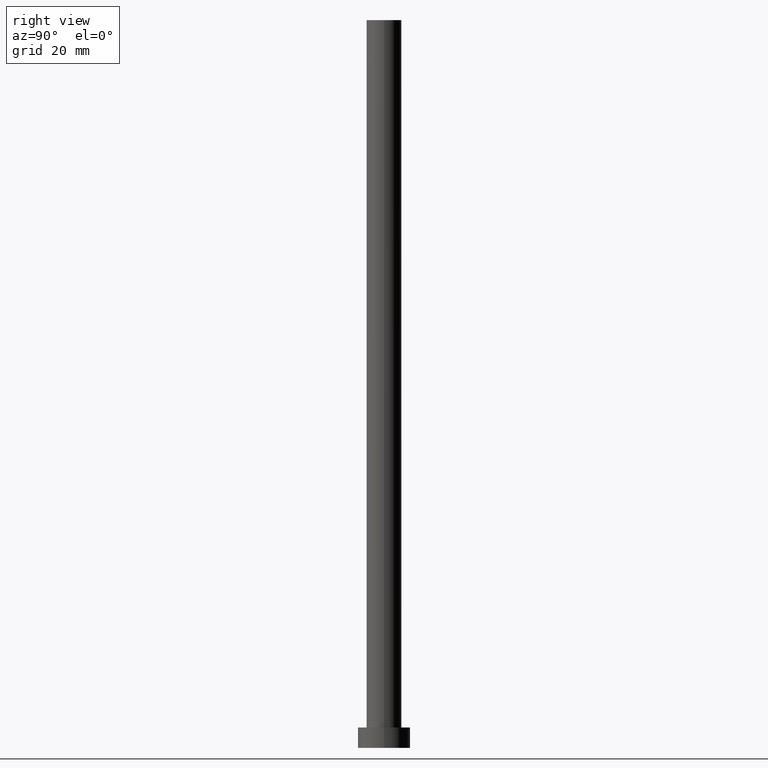
[diagram: clean part render]
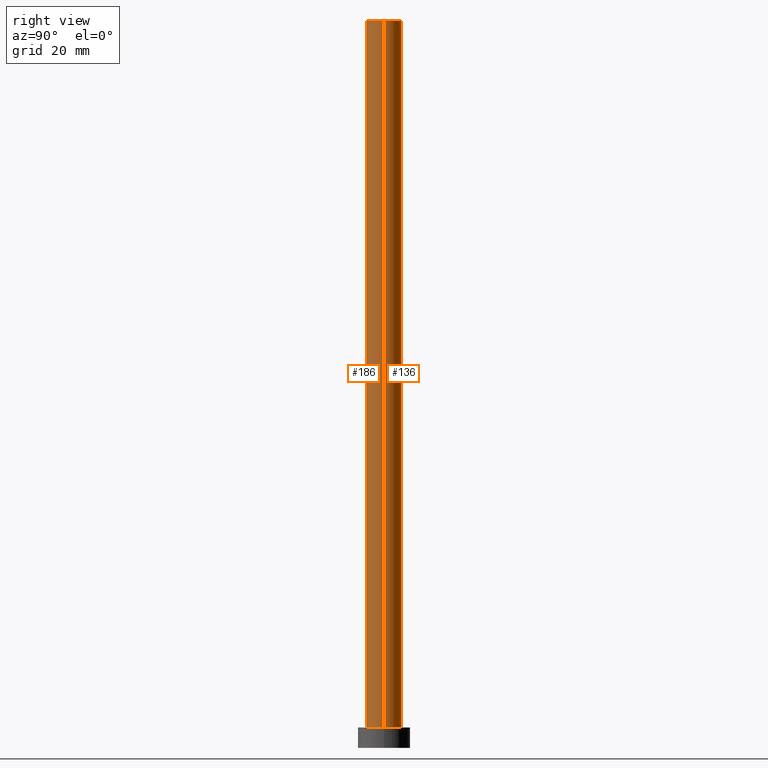
[diagram: same view with one multi-face feature highlighted, each face labeled with its STEP entity id]
A machine part, right view. The highlighted faces form ONE feature: a constant-radius fillet chain: 2 tangent blend faces with common blend radius 6 mm. The faces share edges in the B-rep.
Their STEP definitions:
[1] entity #136 (Cylinder):
#3 = VERTEX_POINT ( 'NONE', #108 ) ;
#7 = CARTESIAN_POINT ( 'NONE',  ( 0.000000000000000000, 0.000000000000000000, 250.0000000000000000 ) ) ;
#22 = CYLINDRICAL_SURFACE ( 'NONE', #156, 6.000000000000000888 ) ;
#38 = CARTESIAN_POINT ( 'NONE',  ( 0.000000000000000000, 0.000000000000000000, 7.000000000000000000 ) ) ;
#42 = EDGE_LOOP ( 'NONE', ( #175, #54, #238, #105 ) ) ;
#46 = EDGE_CURVE ( 'NONE', #3, #194, #182, .T. ) ;
#53 = AXIS2_PLACEMENT_3D ( 'NONE', #38, #119, #216 ) ;
#54 = ORIENTED_EDGE ( 'NONE', *, *, #232, .T. ) ;
#66 = AXIS2_PLACEMENT_3D ( 'NONE', #118, #255, #82 ) ;
#75 = EDGE_CURVE ( 'NONE', #191, #126, #128, .T. ) ;
#82 = DIRECTION ( 'NONE',  ( 1.000000000000000000, 0.000000000000000000, 0.000000000000000000 ) ) ;
#91 = LINE ( 'NONE', #249, #250 ) ;
#105 = ORIENTED_EDGE ( 'NONE', *, *, #160, .F. ) ;
#108 = CARTESIAN_POINT ( 'NONE',  ( 6.000000000000000888, 7.347880794884120722E-16, 250.0000000000000000 ) ) ;
#110 = CARTESIAN_POINT ( 'NONE',  ( -6.000000000000000888, 0.000000000000000000, 250.0000000000000000 ) ) ;
#111 = CARTESIAN_POINT ( 'NONE',  ( 6.000000000000000888, 7.347880794884120722E-16, 7.000000000000000000 ) ) ;
#118 = CARTESIAN_POINT ( 'NONE',  ( 0.000000000000000000, 0.000000000000000000, 250.0000000000000000 ) ) ;
#119 = DIRECTION ( 'NONE',  ( 0.000000000000000000, 0.000000000000000000, 1.000000000000000000 ) ) ;
#126 = VERTEX_POINT ( 'NONE', #224 ) ;
#128 = CIRCLE ( 'NONE', #53, 6.000000000000000888 ) ;
#133 = DIRECTION ( 'NONE',  ( -0.000000000000000000, -0.000000000000000000, -1.000000000000000000 ) ) ;
#136 = ADVANCED_FACE ( 'NONE', ( #241 ), #22, .T. ) ;
#156 = AXIS2_PLACEMENT_3D ( 'NONE', #7, #198, #239 ) ;
#160 = EDGE_CURVE ( 'NONE', #194, #126, #178, .T. ) ;
#175 = ORIENTED_EDGE ( 'NONE', *, *, #46, .F. ) ;
#178 = LINE ( 'NONE', #222, #230 ) ;
#182 = CIRCLE ( 'NONE', #66, 6.000000000000000888 ) ;
#191 = VERTEX_POINT ( 'NONE', #111 ) ;
#194 = VERTEX_POINT ( 'NONE', #110 ) ;
#198 = DIRECTION ( 'NONE',  ( -0.000000000000000000, -0.000000000000000000, -1.000000000000000000 ) ) ;
#202 = DIRECTION ( 'NONE',  ( -0.000000000000000000, -0.000000000000000000, -1.000000000000000000 ) ) ;
#216 = DIRECTION ( 'NONE',  ( 1.000000000000000000, 0.000000000000000000, 0.000000000000000000 ) ) ;
#222 = CARTESIAN_POINT ( 'NONE',  ( -6.000000000000000888, 0.000000000000000000, 250.0000000000000000 ) ) ;
#224 = CARTESIAN_POINT ( 'NONE',  ( -6.000000000000000888, 0.000000000000000000, 7.000000000000000000 ) ) ;
#230 = VECTOR ( 'NONE', #133, 1000.000000000000000 ) ;
#232 = EDGE_CURVE ( 'NONE', #3, #191, #91, .T. ) ;
#238 = ORIENTED_EDGE ( 'NONE', *, *, #75, .T. ) ;
#239 = DIRECTION ( 'NONE',  ( -1.000000000000000000, 0.000000000000000000, 0.000000000000000000 ) ) ;
#241 = FACE_OUTER_BOUND ( 'NONE', #42, .T. ) ;
#249 = CARTESIAN_POINT ( 'NONE',  ( 6.000000000000000888, 7.347880794884120722E-16, 250.0000000000000000 ) ) ;
#250 = VECTOR ( 'NONE', #202, 1000.000000000000000 ) ;
#255 = DIRECTION ( 'NONE',  ( 0.000000000000000000, 0.000000000000000000, 1.000000000000000000 ) ) ;
[2] entity #186 (Cylinder):
#3 = VERTEX_POINT ( 'NONE', #108 ) ;
#9 = DIRECTION ( 'NONE',  ( 0.000000000000000000, 0.000000000000000000, 1.000000000000000000 ) ) ;
#10 = DIRECTION ( 'NONE',  ( -0.000000000000000000, -0.000000000000000000, -1.000000000000000000 ) ) ;
#11 = DIRECTION ( 'NONE',  ( 0.000000000000000000, 0.000000000000000000, 1.000000000000000000 ) ) ;
#12 = CARTESIAN_POINT ( 'NONE',  ( 0.000000000000000000, 0.000000000000000000, 250.0000000000000000 ) ) ;
#14 = CIRCLE ( 'NONE', #225, 6.000000000000000888 ) ;
#28 = CARTESIAN_POINT ( 'NONE',  ( 0.000000000000000000, 0.000000000000000000, 7.000000000000000000 ) ) ;
#39 = ORIENTED_EDGE ( 'NONE', *, *, #138, .F. ) ;
#70 = ORIENTED_EDGE ( 'NONE', *, *, #232, .F. ) ;
#86 = AXIS2_PLACEMENT_3D ( 'NONE', #12, #10, #161 ) ;
#88 = CARTESIAN_POINT ( 'NONE',  ( 0.000000000000000000, 0.000000000000000000, 250.0000000000000000 ) ) ;
#91 = LINE ( 'NONE', #249, #250 ) ;
#108 = CARTESIAN_POINT ( 'NONE',  ( 6.000000000000000888, 7.347880794884120722E-16, 250.0000000000000000 ) ) ;
#110 = CARTESIAN_POINT ( 'NONE',  ( -6.000000000000000888, 0.000000000000000000, 250.0000000000000000 ) ) ;
#111 = CARTESIAN_POINT ( 'NONE',  ( 6.000000000000000888, 7.347880794884120722E-16, 7.000000000000000000 ) ) ;
#121 = CIRCLE ( 'NONE', #164, 6.000000000000000888 ) ;
#126 = VERTEX_POINT ( 'NONE', #224 ) ;
#133 = DIRECTION ( 'NONE',  ( -0.000000000000000000, -0.000000000000000000, -1.000000000000000000 ) ) ;
#138 = EDGE_CURVE ( 'NONE', #194, #3, #14, .T. ) ;
#159 = DIRECTION ( 'NONE',  ( 1.000000000000000000, 0.000000000000000000, 0.000000000000000000 ) ) ;
#160 = EDGE_CURVE ( 'NONE', #194, #126, #178, .T. ) ;
#161 = DIRECTION ( 'NONE',  ( -1.000000000000000000, 0.000000000000000000, 0.000000000000000000 ) ) ;
#164 = AXIS2_PLACEMENT_3D ( 'NONE', #28, #11, #204 ) ;
#178 = LINE ( 'NONE', #222, #230 ) ;
#181 = FACE_OUTER_BOUND ( 'NONE', #197, .T. ) ;
#186 = ADVANCED_FACE ( 'NONE', ( #181 ), #252, .T. ) ;
#191 = VERTEX_POINT ( 'NONE', #111 ) ;
#194 = VERTEX_POINT ( 'NONE', #110 ) ;
#197 = EDGE_LOOP ( 'NONE', ( #70, #39, #221, #212 ) ) ;
#202 = DIRECTION ( 'NONE',  ( -0.000000000000000000, -0.000000000000000000, -1.000000000000000000 ) ) ;
#204 = DIRECTION ( 'NONE',  ( 1.000000000000000000, 0.000000000000000000, 0.000000000000000000 ) ) ;
#212 = ORIENTED_EDGE ( 'NONE', *, *, #237, .T. ) ;
#221 = ORIENTED_EDGE ( 'NONE', *, *, #160, .T. ) ;
#222 = CARTESIAN_POINT ( 'NONE',  ( -6.000000000000000888, 0.000000000000000000, 250.0000000000000000 ) ) ;
#224 = CARTESIAN_POINT ( 'NONE',  ( -6.000000000000000888, 0.000000000000000000, 7.000000000000000000 ) ) ;
#225 = AXIS2_PLACEMENT_3D ( 'NONE', #88, #9, #159 ) ;
#230 = VECTOR ( 'NONE', #133, 1000.000000000000000 ) ;
#232 = EDGE_CURVE ( 'NONE', #3, #191, #91, .T. ) ;
#237 = EDGE_CURVE ( 'NONE', #126, #191, #121, .T. ) ;
#249 = CARTESIAN_POINT ( 'NONE',  ( 6.000000000000000888, 7.347880794884120722E-16, 250.0000000000000000 ) ) ;
#250 = VECTOR ( 'NONE', #202, 1000.000000000000000 ) ;
#252 = CYLINDRICAL_SURFACE ( 'NONE', #86, 6.000000000000000888 ) ;